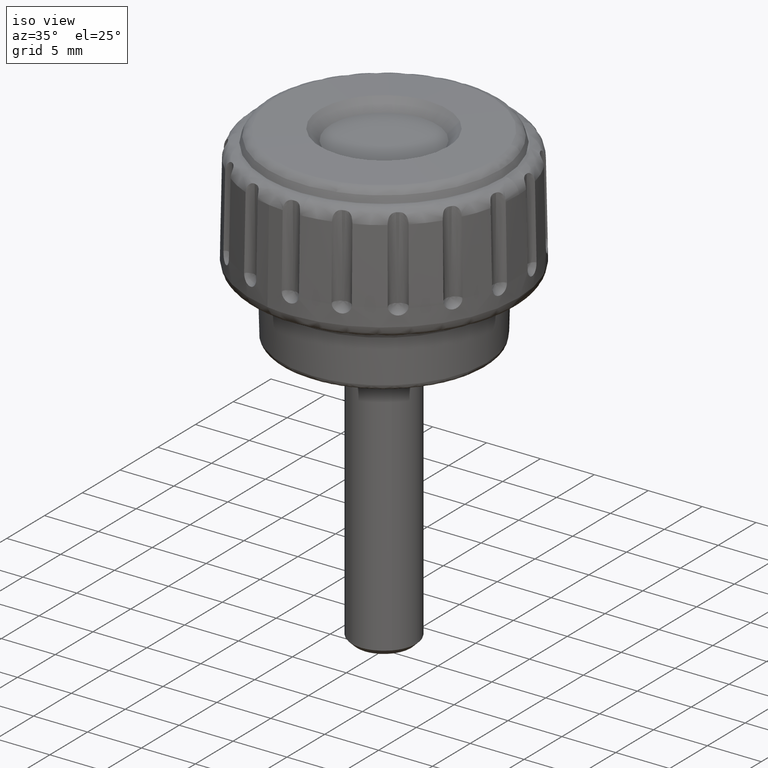
[diagram: clean part render]
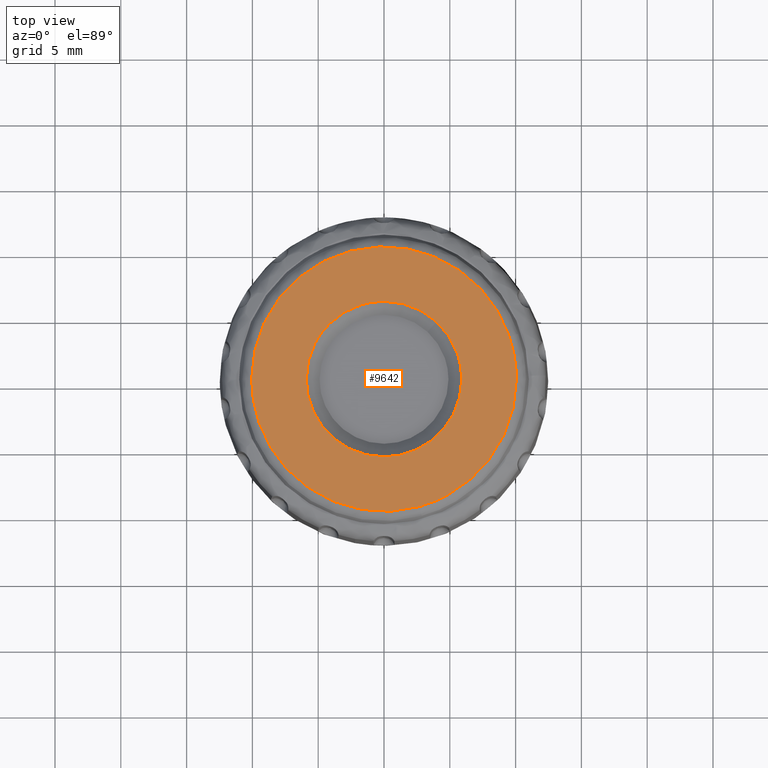
[diagram: tour spotlight — one face highlighted and labeled with its STEP entity id]
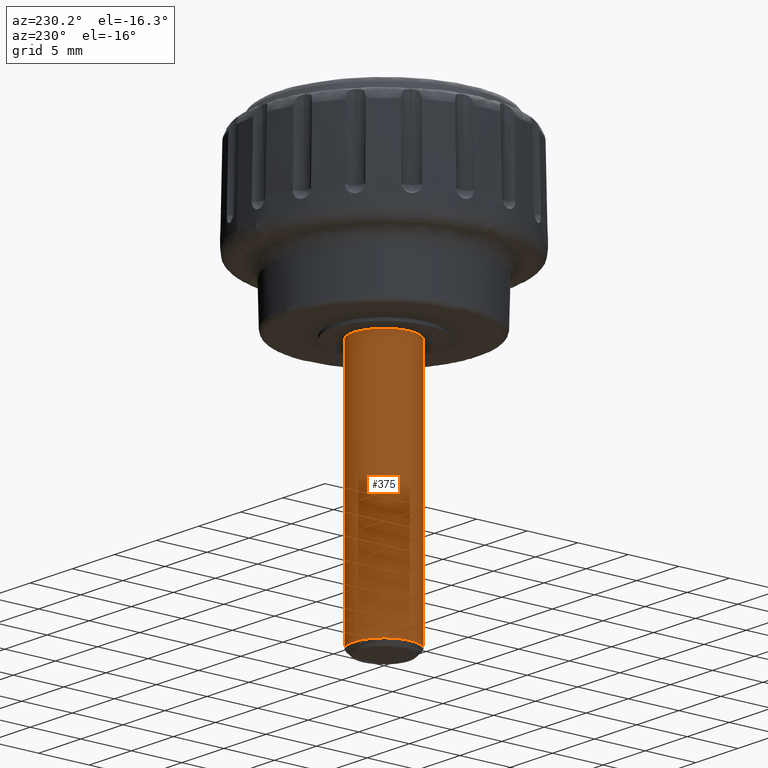
[diagram: tour spotlight — one face highlighted and labeled with its STEP entity id]
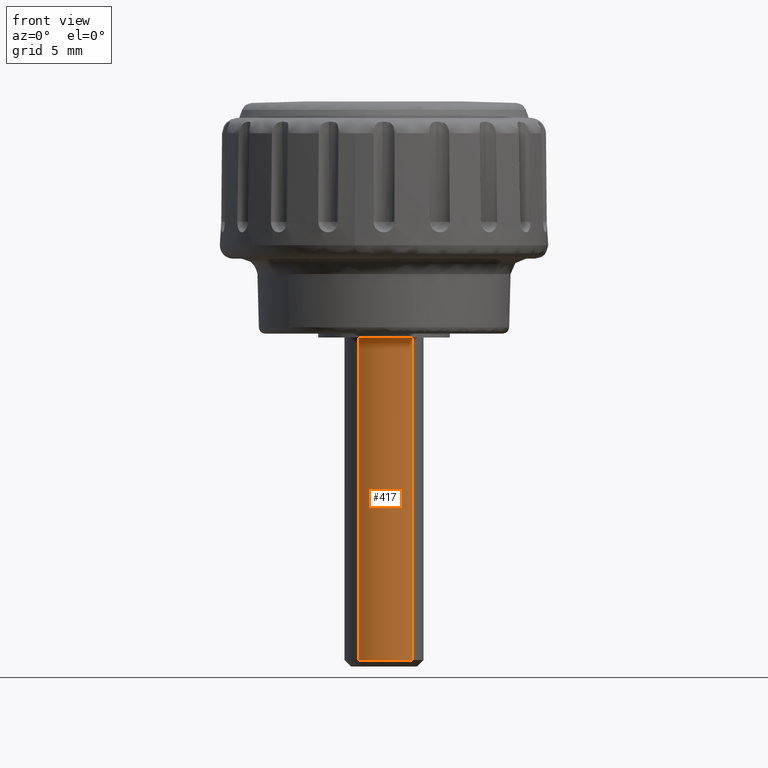
[diagram: tour spotlight — one face highlighted and labeled with its STEP entity id]
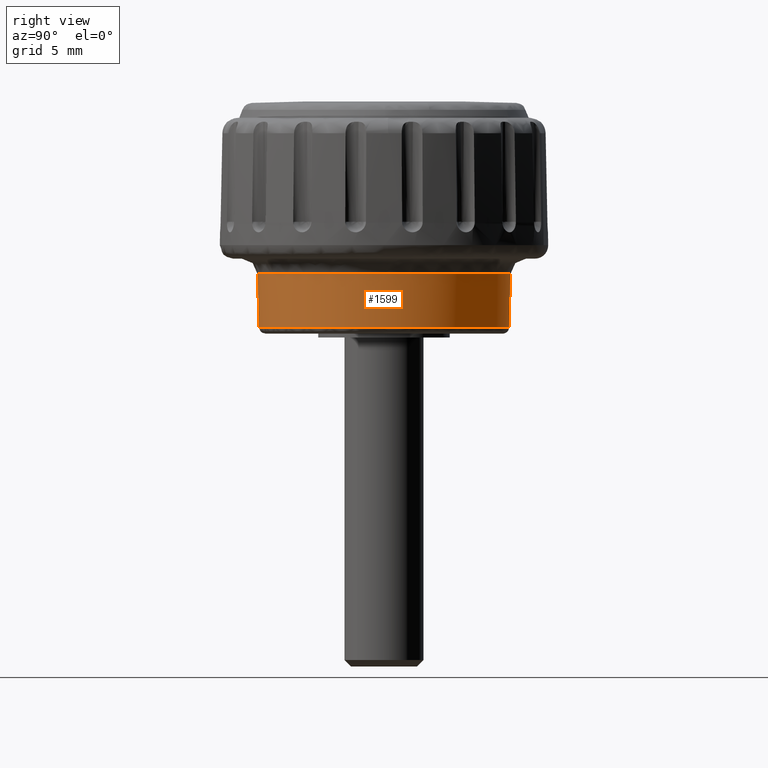
[diagram: tour spotlight — one face highlighted and labeled with its STEP entity id]
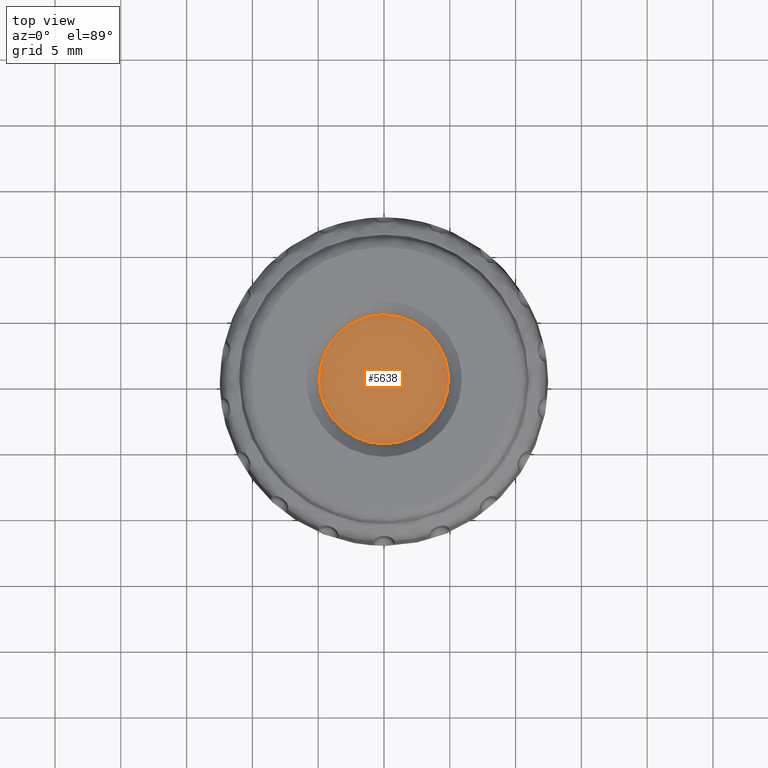
[diagram: tour spotlight — one face highlighted and labeled with its STEP entity id]
A machine part: a face-by-face anatomy tour. The part has 110 B-rep faces; the first image is the clean iso view, then the 5 largest visible faces are spotlighted one at a time (largest first), each with its STEP entity span.

Face 1 — top view, entity #9642. In plain terms, the highlighted face is a freeform B-spline surface patch.
Definition (entity closure, byte-faithful):
#1000=CARTESIAN_POINT('',(-4.121510479689125,4.235086036388356,17.941789608176322));
#1001=VERTEX_POINT('',#1000);
#1007=CARTESIAN_POINT('',(-5.909552000000001,0.0,17.941789677863099));
#1008=VERTEX_POINT('',#1007);
#1009=CARTESIAN_POINT('',(-5.909552000000001,0.0,17.941789677863099));
#1010=CARTESIAN_POINT('',(-5.909619661100727,0.418069894410495,17.941789670983930));
#1011=CARTESIAN_POINT('',(-5.834854874073522,1.118912363674545,17.941789659451761));
#1012=CARTESIAN_POINT('',(-5.575752436700976,2.006442468854826,17.941789644847940));
#1013=CARTESIAN_POINT('',(-5.225652433726414,2.807696856056351,17.941789631663511));
#1014=CARTESIAN_POINT('',(-4.758554685968084,3.549766622256800,17.941789619452759));
#1015=CARTESIAN_POINT('',(-4.324188961104616,4.037853153181898,17.941789611421981));
#1016=CARTESIAN_POINT('',(-4.121510479689125,4.235086036388356,17.941789608176322));
#1017=B_SPLINE_CURVE_WITH_KNOTS('',3,(#1009,#1010,#1011,#1012,#1013,#1014,#1015,#1016),.UNSPECIFIED.,.F.,.U.,(4,1,1,1,1,4),(6.848642E-009,1.254194519798363,2.102621309503282,2.766599025292651,3.873248115063476,4.721671390620792),.UNSPECIFIED.);
#1018=EDGE_CURVE('',#1008,#1001,#1017,.T.);
#1020=CARTESIAN_POINT('',(-0.000000557700096,-5.909551999999974,17.941789677863099));
#1021=VERTEX_POINT('',#1020);
#1022=CARTESIAN_POINT('',(-0.000000557700096,-5.909551999999974,17.941789677863099));
#1023=CARTESIAN_POINT('',(-0.265907684167898,-5.909559752145484,17.941789677863110));
#1024=CARTESIAN_POINT('',(-0.833989299106983,-5.871156951760404,17.941789677863099));
#1025=CARTESIAN_POINT('',(-1.580648674316703,-5.710686109015982,17.941789677863142));
#1026=CARTESIAN_POINT('',(-2.448511650021575,-5.406207007653451,17.941789677862989));
#1027=CARTESIAN_POINT('',(-3.272679022035996,-4.962419761250255,17.941789677863220));
#1028=CARTESIAN_POINT('',(-4.158151823653472,-4.244736003440629,17.941789677863010));
#1029=CARTESIAN_POINT('',(-4.877736876022654,-3.405422557712509,17.941789677863039));
#1030=CARTESIAN_POINT('',(-5.375092700300107,-2.514676325729137,17.941789677863330));
#1031=CARTESIAN_POINT('',(-5.667909356134548,-1.719335993361709,17.941789677863031));
#1032=CARTESIAN_POINT('',(-5.857771595572822,-0.930672772540710,17.941789677863191));
#1033=CARTESIAN_POINT('',(-5.909589585244265,-0.350518411395640,17.941789677862960));
#1034=CARTESIAN_POINT('',(-5.909552000000001,0.0,17.941789677863099));
#1035=B_SPLINE_CURVE_WITH_KNOTS('',3,(#1022,#1023,#1024,#1025,#1026,#1027,#1028,#1029,#1030,#1031,#1032,#1033,#1034),.UNSPECIFIED.,.F.,.U.,(4,1,1,1,1,1,1,1,1,1,4),(0.000000026020897,0.797723175459975,1.704244658628767,2.284418540561471,3.553544212825225,4.496329351117259,5.692906575939356,6.853255081185443,7.542209152648718,8.231168668898500,9.282716822140900),.UNSPECIFIED.);
#1036=EDGE_CURVE('',#1021,#1008,#1035,.T.);
#1038=CARTESIAN_POINT('',(5.909552000000001,0.0,17.941789677863099));
#1039=VERTEX_POINT('',#1038);
#1040=CARTESIAN_POINT('',(5.909552000000001,0.0,17.941789677863099));
#1041=CARTESIAN_POINT('',(5.909562046082797,-0.265907786939841,17.941789677863110));
#1042=CARTESIAN_POINT('',(5.874403299788630,-0.785634674789982,17.941789677863110));
#1043=CARTESIAN_POINT('',(5.687335207782830,-1.711677003988596,17.941789677863142));
#1044=CARTESIAN_POINT('',(5.330108821576777,-2.629277174452003,17.941789677863060));
#1045=CARTESIAN_POINT('',(4.761290759294286,-3.546058624764110,17.941789677863461));
#1046=CARTESIAN_POINT('',(4.200569361873785,-4.184111365999597,17.941789677862442));
#1047=CARTESIAN_POINT('',(3.559132077654618,-4.737406546959435,17.941789677863589));
#1048=CARTESIAN_POINT('',(2.932927801215936,-5.153051317825192,17.941789677862850));
#1049=CARTESIAN_POINT('',(2.102009020614549,-5.549194754543740,17.941789677863309));
#1050=CARTESIAN_POINT('',(1.136149087871587,-5.835729579446431,17.941789677862811));
#1051=CARTESIAN_POINT('',(0.386779638657437,-5.909592835188267,17.941789677863522));
#1052=CARTESIAN_POINT('',(-0.000000557700096,-5.909551999999974,17.941789677863099));
#1053=B_SPLINE_CURVE_WITH_KNOTS('',3,(#1040,#1041,#1042,#1043,#1044,#1045,#1046,#1047,#1048,#1049,#1050,#1051,#1052),.UNSPECIFIED.,.F.,.U.,(4,1,1,1,1,1,1,1,1,1,4),(0.000000025970371,0.797723229465197,1.559204216561980,2.828331541875478,3.734852290875899,4.786387951161980,5.366559449189907,6.273081200728529,7.034559601645047,8.122382846804698,9.282717450799874),.UNSPECIFIED.);
#1054=EDGE_CURVE('',#1039,#1021,#1053,.T.);
#1056=CARTESIAN_POINT('',(3.992435603349160,4.356978913906564,17.941789747310320));
#1057=VERTEX_POINT('',#1056);
#1058=CARTESIAN_POINT('',(3.992435603349160,4.356978913906564,17.941789747310320));
#1059=CARTESIAN_POINT('',(4.284076465759918,4.089815484677831,17.941789743051899));
#1060=CARTESIAN_POINT('',(4.787756635148734,3.525318875298195,17.941789734054300));
#1061=CARTESIAN_POINT('',(5.345356555342176,2.589990339368126,17.941789719145682));
#1062=CARTESIAN_POINT('',(5.690595191643523,1.680212609266842,17.941789704644581));
#1063=CARTESIAN_POINT('',(5.872179717603854,0.816531492780162,17.941789690878021));
#1064=CARTESIAN_POINT('',(5.909562673170454,0.267924568074131,17.941789682133638));
#1065=CARTESIAN_POINT('',(5.909552000000001,0.0,17.941789677863099));
#1066=B_SPLINE_CURVE_WITH_KNOTS('',3,(#1058,#1059,#1060,#1061,#1062,#1063,#1064,#1065),.UNSPECIFIED.,.F.,.U.,(4,1,1,1,1,4),(7.725902E-009,1.186527852656596,2.258231358571509,3.253380337973333,4.095438844937823,4.899212786028841),.UNSPECIFIED.);
#1067=EDGE_CURVE('',#1057,#1039,#1066,.T.);
#1164=CARTESIAN_POINT('',(0.000000557700089,5.909551999999975,17.941789677863099));
#1165=VERTEX_POINT('',#1164);
#1166=CARTESIAN_POINT('',(0.000000557700089,5.909551999999975,17.941789677863099));
#1167=CARTESIAN_POINT('',(0.308215791095894,5.909568956443000,17.941789683224400));
#1168=CARTESIAN_POINT('',(0.901807154747259,5.863002194994349,17.941789693549790));
#1169=CARTESIAN_POINT('',(1.893899974391516,5.631931751733363,17.941789710806969));
#1170=CARTESIAN_POINT('',(2.958036492032543,5.171228715063642,17.941789729317179));
#1171=CARTESIAN_POINT('',(3.664255304168359,4.657821650523145,17.941789741601859));
#1172=CARTESIAN_POINT('',(3.992435603349160,4.356978913906564,17.941789747310320));
#1173=B_SPLINE_CURVE_WITH_KNOTS('',3,(#1166,#1167,#1168,#1169,#1170,#1171,#1172),.UNSPECIFIED.,.F.,.U.,(4,1,1,1,4),(5.697659E-009,0.924644270796121,1.780803383496765,3.047903759170751,4.383504091195303),.UNSPECIFIED.);
#1174=EDGE_CURVE('',#1165,#1057,#1173,.T.);
#1176=CARTESIAN_POINT('',(-4.121510479689125,4.235086036388356,17.941789608176322));
#1177=CARTESIAN_POINT('',(-3.883187238377165,4.467054899102982,17.941789612205881));
#1178=CARTESIAN_POINT('',(-3.385655855818533,4.875458124680774,17.941789620618270));
#1179=CARTESIAN_POINT('',(-2.591623499921373,5.334946039071899,17.941789634043591));
#1180=CARTESIAN_POINT('',(-1.883088853828741,5.615348174320671,17.941789646023999));
#1181=CARTESIAN_POINT('',(-1.033332997146191,5.843505715980528,17.941789660391120));
#1182=CARTESIAN_POINT('',(-0.427606061203622,5.909632434107131,17.941789670633039));
#1183=CARTESIAN_POINT('',(0.000000557700089,5.909551999999975,17.941789677863099));
#1184=B_SPLINE_CURVE_WITH_KNOTS('',3,(#1176,#1177,#1178,#1179,#1180,#1181,#1182,#1183),.UNSPECIFIED.,.F.,.U.,(4,1,1,1,1,4),(6.528772E-009,0.997727951892553,1.924197304947695,2.743752036902596,3.278251024844706,4.561046152433264),.UNSPECIFIED.);
#1185=EDGE_CURVE('',#1001,#1165,#1184,.T.);
#3416=CARTESIAN_POINT('',(2.677068738669253,-9.691722231942137,17.831459028480641));
#3417=VERTEX_POINT('',#3416);
#3429=CARTESIAN_POINT('',(-10.054659382515901,0.0,17.831459031072551));
#3430=VERTEX_POINT('',#3429);
#3431=CARTESIAN_POINT('',(2.677068738669253,-9.691722231942137,17.831459028480641));
#3432=CARTESIAN_POINT('',(2.305498311058460,-9.794366216209097,17.831459028617591));
#3433=CARTESIAN_POINT('',(1.526936052111290,-9.961928204017665,17.831459028896852));
#3434=CARTESIAN_POINT('',(0.469485350518968,-10.060959278079610,17.831459029255960));
#3435=CARTESIAN_POINT('',(-0.591421044037809,-10.053251411631440,17.831459029599049));
#3436=CARTESIAN_POINT('',(-1.719517175895530,-9.935174298500778,17.831459029946402));
#3437=CARTESIAN_POINT('',(-3.058960575364642,-9.616327423952583,17.831459030330571));
#3438=CARTESIAN_POINT('',(-4.382252666741920,-9.086135040507752,17.831459030675770));
#3439=CARTESIAN_POINT('',(-5.533785141897118,-8.424864760096364,17.831459030944401));
#3440=CARTESIAN_POINT('',(-6.692250119378349,-7.556169141090214,17.831459031182352));
#3441=CARTESIAN_POINT('',(-7.675675940585733,-6.554827563479090,17.831459031342359));
#3442=CARTESIAN_POINT('',(-8.594004078892471,-5.283059124700836,17.831459031438289));
#3443=CARTESIAN_POINT('',(-9.214192794163617,-4.106898227959777,17.831459031452692));
#3444=CARTESIAN_POINT('',(-9.638623016878171,-2.925925767348024,17.831459031402581));
#3445=CARTESIAN_POINT('',(-9.960797246788141,-1.614213871139840,17.831459031298799));
#3446=CARTESIAN_POINT('',(-10.054737099017110,-0.650522936927708,17.831459031176060));
#3447=CARTESIAN_POINT('',(-10.054659382515901,0.0,17.831459031072551));
#3448=B_SPLINE_CURVE_WITH_KNOTS('',3,(#3431,#3432,#3433,#3434,#3435,#3436,#3437,#3438,#3439,#3440,#3441,#3442,#3443,#3444,#3445,#3446,#3447),.UNSPECIFIED.,.F.,.U.,(4,1,1,1,1,1,1,1,1,1,1,1,1,1,4),(0.000000015273024,1.156463902962702,2.385223978022680,3.180302966194091,4.336783782153448,5.782383848136906,7.300263725235464,8.601289909813117,9.757754287610448,11.637030510820690,12.793510252719180,14.455948778382909,15.612429709707730,16.552063605304159,18.503613867493101),.UNSPECIFIED.);
#3449=EDGE_CURVE('',#3417,#3430,#3448,.T.);
#3451=CARTESIAN_POINT('',(9.522750939903190,3.226978708582348,17.831459028153130));
#3452=VERTEX_POINT('',#3451);
#3453=CARTESIAN_POINT('',(-10.054659382515901,0.0,17.831459031072551));
#3454=CARTESIAN_POINT('',(-10.054671256548080,0.423793853488046,17.831459031133861));
#3455=CARTESIAN_POINT('',(-10.000997329337521,1.271387116860543,17.831459031247231));
#3456=CARTESIAN_POINT('',(-9.788659842080481,2.377424854629313,17.831459031370521));
#3457=CARTESIAN_POINT('',(-9.462517962414342,3.454064366891525,17.831459031469951));
#3458=CARTESIAN_POINT('',(-8.939477285445920,4.696250760093413,17.831459031559081));
#3459=CARTESIAN_POINT('',(-8.116114811452619,6.015342485914949,17.831459031607739));
#3460=CARTESIAN_POINT('',(-7.184277876788401,7.065503571624364,17.831459031598250));
#3461=CARTESIAN_POINT('',(-6.224375943902798,7.928689637704465,17.831459031557401));
#3462=CARTESIAN_POINT('',(-5.270832075530849,8.597184909061786,17.831459031489029));
#3463=CARTESIAN_POINT('',(-3.977536656023024,9.269630122393386,17.831459031362321));
#3464=CARTESIAN_POINT('',(-2.531558917011459,9.784519243448786,17.831459031187141));
#3465=CARTESIAN_POINT('',(-0.834547032347005,10.068985998604560,17.831459030933971));
#3466=CARTESIAN_POINT('',(0.939971378601139,10.061358664859450,17.831459030626810));
#3467=CARTESIAN_POINT('',(2.506547434002613,9.780322720950315,17.831459030314019));
#3468=CARTESIAN_POINT('',(3.849539427948847,9.313958262506571,17.831459030016820));
#3469=CARTESIAN_POINT('',(4.861992726649278,8.821896489732776,17.831459029767629));
#3470=CARTESIAN_POINT('',(5.864348424534205,8.197887082561547,17.831459029505972));
#3471=CARTESIAN_POINT('',(6.785294628920154,7.456498751139654,17.831459029238360));
#3472=CARTESIAN_POINT('',(7.578921522507645,6.632339706544056,17.831459028982160));
#3473=CARTESIAN_POINT('',(8.298318175651755,5.719837523872728,17.831459028725469));
#3474=CARTESIAN_POINT('',(8.973658465416508,4.616773408769180,17.831459028449618));
#3475=CARTESIAN_POINT('',(9.363108459240872,3.698168316342303,17.831459028248641));
#3476=CARTESIAN_POINT('',(9.522750939903190,3.226978708582348,17.831459028153130));
#3477=B_SPLINE_CURVE_WITH_KNOTS('',3,(#3453,#3454,#3455,#3456,#3457,#3458,#3459,#3460,#3461,#3462,#3463,#3464,#3465,#3466,#3467,#3468,#3469,#3470,#3471,#3472,#3473,#3474,#3475,#3476),.UNSPECIFIED.,.F.,.U.,(4,1,1,1,1,1,1,1,1,1,1,1,1,1,1,1,1,1,1,1,1,4),(0.000000050935505,1.271382338108623,2.542788655310680,3.371971324904120,4.643380481592935,6.578135125665643,8.015376953018610,8.844555759210298,10.447633108815960,11.497920761414299,13.211571265897129,15.035713677623329,16.638793500766639,18.518276999925089,19.789682186201400,20.895252860372519,21.890268144335170,23.327512665966861,24.433074810615651,25.317540054270619,26.810069007962760,28.302564754765609),.UNSPECIFIED.);
#3478=EDGE_CURVE('',#3430,#3452,#3477,.T.);
#3522=CARTESIAN_POINT('',(10.054659382515901,0.0,17.831459031072551));
#3523=VERTEX_POINT('',#3522);
#3524=CARTESIAN_POINT('',(9.522750939903190,3.226978708582348,17.831459028153130));
#3525=CARTESIAN_POINT('',(9.737012119458459,2.595014537109072,17.831459029328990));
#3526=CARTESIAN_POINT('',(9.984691255187697,1.522789322807777,17.831459030688631));
#3527=CARTESIAN_POINT('',(10.054668700901971,0.427749405026603,17.831459031072558));
#3528=CARTESIAN_POINT('',(10.054659382515901,0.0,17.831459031072551));
#3529=B_SPLINE_CURVE_WITH_KNOTS('',3,(#3524,#3525,#3526,#3527,#3528),.UNSPECIFIED.,.F.,.U.,(4,1,4),(8.874781E-010,2.001867338528899,3.285118561245126),.UNSPECIFIED.);
#3530=EDGE_CURVE('',#3452,#3523,#3529,.T.);
#3532=CARTESIAN_POINT('',(10.054659382515901,0.0,17.831459031072551));
#3533=CARTESIAN_POINT('',(10.054745058491060,-0.647396240099248,17.831459031072590));
#3534=CARTESIAN_POINT('',(9.958879122034052,-1.635481406308894,17.831459031038801));
#3535=CARTESIAN_POINT('',(9.645657844336473,-2.893531044931835,17.831459030929050));
#3536=CARTESIAN_POINT('',(9.298168592893033,-3.874099142356632,17.831459030806670));
#3537=CARTESIAN_POINT('',(8.879639493974404,-4.752201200943024,17.831459030659818));
#3538=CARTESIAN_POINT('',(8.314949201765581,-5.685973103863252,17.831459030461229));
#3539=CARTESIAN_POINT('',(7.696629808853966,-6.502537609803381,17.831459030244261));
#3540=CARTESIAN_POINT('',(6.909397355265623,-7.330918669980476,17.831459029966869));
#3541=CARTESIAN_POINT('',(6.154973028423711,-7.971677774693648,17.831459029703879));
#3542=CARTESIAN_POINT('',(5.229376154021996,-8.611733124814025,17.831459029376390));
#3543=CARTESIAN_POINT('',(4.117804646084551,-9.212802113847703,17.831459028987030));
#3544=CARTESIAN_POINT('',(3.186149765253029,-9.551140559789431,17.831459028659609));
#3545=CARTESIAN_POINT('',(2.677068738669253,-9.691722231942137,17.831459028480641));
#3546=B_SPLINE_CURVE_WITH_KNOTS('',3,(#3532,#3533,#3534,#3535,#3536,#3537,#3538,#3539,#3540,#3541,#3542,#3543,#3544,#3545),.UNSPECIFIED.,.F.,.U.,(4,1,1,1,1,1,1,1,1,1,1,4),(0.000000014412478,1.942167402411972,2.964362742004349,3.884337726068917,5.059862556937159,5.877619396891110,7.155347469123917,8.126442234492272,9.301965691360902,10.119722611338080,11.499684024199590,13.084084166756091),.UNSPECIFIED.);
#3547=EDGE_CURVE('',#3523,#3417,#3546,.T.);
#9604=CARTESIAN_POINT('',(-11.054717711246463,-11.051500963101445,17.592485791595173));
#9605=CARTESIAN_POINT('',(-5.529237104319104,-11.055256367411818,17.796232976084486));
#9606=CARTESIAN_POINT('',(5.529233305718487,-11.055256367411818,17.796232976084486));
#9607=CARTESIAN_POINT('',(11.054710121785643,-11.051500968259630,17.592486071449692));
#9608=CARTESIAN_POINT('',(-11.058472022051193,-5.527627090730541,17.796114378651410));
#9609=CARTESIAN_POINT('',(-5.531115535905244,-5.529506068698154,17.999999999999890));
#9610=CARTESIAN_POINT('',(5.531111736014140,-5.529506068698154,17.999999999999890));
#9611=CARTESIAN_POINT('',(11.058464430014668,-5.527627093311391,17.796114658696055));
#9612=CARTESIAN_POINT('',(-11.058472022051193,5.527607654936431,17.796114378651410));
#9613=CARTESIAN_POINT('',(-5.531115535905244,5.529486626297334,17.999999999999890));
#9614=CARTESIAN_POINT('',(5.531111736014140,5.529486626297334,17.999999999999890));
#9615=CARTESIAN_POINT('',(11.058464430014668,5.527607657517272,17.796114658696055));
#9616=CARTESIAN_POINT('',(-11.054717737638654,11.051462131094434,17.592487223071153));
#9617=CARTESIAN_POINT('',(-5.529237117524175,11.055217522218305,17.796234408533511));
#9618=CARTESIAN_POINT('',(5.529233318923549,11.055217522218305,17.796234408533511));
#9619=CARTESIAN_POINT('',(11.054710148177829,11.051462136252615,17.592487502925689));
#9627=(BOUNDED_SURFACE()B_SPLINE_SURFACE(2,2,((#9604,#9608,#9612,#9616),(#9605,#9609,#9613,#9617),(#9606,#9610,#9614,#9618),(#9607,#9611,#9615,#9619)),.UNSPECIFIED.,.F.,.F.,.U.)B_SPLINE_SURFACE_WITH_KNOTS((3,1,3),(3,1,3),(120.467627652740500,131.258495222790710,142.049355379486090),(120.470767624664300,131.258495222790710,142.046184889984090),.UNSPECIFIED.)GEOMETRIC_REPRESENTATION_ITEM()RATIONAL_B_SPLINE_SURFACE(((1.000679651960392,1.000339924878573,1.000339924878573,1.000679649571355),(1.000339727081820,1.0,1.0,1.000339724692782),(1.000339727081820,1.0,1.0,1.000339724692782),(1.000679651493334,1.000339924411514,1.000339924411514,1.000679649104296)))REPRESENTATION_ITEM('')SURFACE());
#9628=ORIENTED_EDGE('',*,*,#3449,.F.);
#9629=ORIENTED_EDGE('',*,*,#3547,.F.);
#9630=ORIENTED_EDGE('',*,*,#3530,.F.);
#9631=ORIENTED_EDGE('',*,*,#3478,.F.);
#9632=EDGE_LOOP('',(#9628,#9629,#9630,#9631));
#9633=FACE_OUTER_BOUND('',#9632,.T.);
#9634=ORIENTED_EDGE('',*,*,#1054,.T.);
#9635=ORIENTED_EDGE('',*,*,#1036,.T.);
#9636=ORIENTED_EDGE('',*,*,#1018,.T.);
#9637=ORIENTED_EDGE('',*,*,#1185,.T.);
#9638=ORIENTED_EDGE('',*,*,#1174,.T.);
#9639=ORIENTED_EDGE('',*,*,#1067,.T.);
#9640=EDGE_LOOP('',(#9634,#9635,#9636,#9637,#9638,#9639));
#9641=FACE_BOUND('',#9640,.T.);
#9642=ADVANCED_FACE('',(#9633,#9641),#9627,.T.);

Face 2 — auxiliary view, entity #375. In plain terms, the highlighted face is a freeform B-spline surface patch.
Definition (entity closure, byte-faithful):
#127=CARTESIAN_POINT('',(2.026770819649649,2.211832225202615,-24.503974903159421));
#128=VERTEX_POINT('',#127);
#134=CARTESIAN_POINT('',(3.0,0.0,-24.503975000000100));
#135=VERTEX_POINT('',#134);
#136=CARTESIAN_POINT('',(2.026770819649649,2.211832225202615,-24.503974903159421));
#137=CARTESIAN_POINT('',(2.227407418314030,2.028119581705434,-24.503974911202960));
#138=CARTESIAN_POINT('',(2.502893603867500,1.696112972537765,-24.503974925739119));
#139=CARTESIAN_POINT('',(2.772495377374212,1.177301470904814,-24.503974948454321));
#140=CARTESIAN_POINT('',(2.950290360391294,0.647653966138758,-24.503974971643959));
#141=CARTESIAN_POINT('',(3.000064783691306,0.246126034469111,-24.503974989223849));
#142=CARTESIAN_POINT('',(3.0,0.0,-24.503975000000100));
#143=B_SPLINE_CURVE_WITH_KNOTS('',3,(#136,#137,#138,#139,#140,#141,#142),.UNSPECIFIED.,.F.,.U.,(4,1,1,1,4),(9.360894E-009,0.816085858437468,1.282412527066087,1.748750232228472,2.487111692275007),.UNSPECIFIED.);
#144=EDGE_CURVE('',#128,#135,#143,.T.);
#146=CARTESIAN_POINT('',(2.176122984644731,-2.065063580313002,-24.503975000000040));
#147=VERTEX_POINT('',#146);
#148=CARTESIAN_POINT('',(3.0,0.0,-24.503975000000100));
#149=CARTESIAN_POINT('',(3.000007985972672,-0.166078542144104,-24.503975000000089));
#150=CARTESIAN_POINT('',(2.969397678591029,-0.533826438069740,-24.503975000000100));
#151=CARTESIAN_POINT('',(2.812196709464023,-1.108889899854671,-24.503974999999990));
#152=CARTESIAN_POINT('',(2.536300743625286,-1.638219112842736,-24.503975000000260));
#153=CARTESIAN_POINT('',(2.290446582273737,-1.944597617903106,-24.503974999999741));
#154=CARTESIAN_POINT('',(2.176122984644731,-2.065063580313002,-24.503975000000040));
#155=B_SPLINE_CURVE_WITH_KNOTS('',3,(#148,#149,#150,#151,#152,#153,#154),.UNSPECIFIED.,.F.,.U.,(4,1,1,1,4),(8.762906E-009,0.498239596345524,1.103250644649670,1.779428348957429,2.277667936539392),.UNSPECIFIED.);
#156=EDGE_CURVE('',#135,#147,#155,.T.);
#171=CARTESIAN_POINT('',(-1.937226260169539,-2.290667057274354,-24.503975000000239));
#172=VERTEX_POINT('',#171);
#183=CARTESIAN_POINT('',(-3.0,0.0,-24.503975000000100));
#184=VERTEX_POINT('',#183);
#185=CARTESIAN_POINT('',(-1.937226260169539,-2.290667057274354,-24.503975000000239));
#186=CARTESIAN_POINT('',(-2.144600629781797,-2.115414481446841,-24.503975000000260));
#187=CARTESIAN_POINT('',(-2.465339312360030,-1.758966710202471,-24.503975000000199));
#188=CARTESIAN_POINT('',(-2.757280800304263,-1.218761294184884,-24.503975000000150));
#189=CARTESIAN_POINT('',(-2.948891583733372,-0.651563614266146,-24.503975000000189));
#190=CARTESIAN_POINT('',(-3.000081304477809,-0.257937485351899,-24.503975000000040));
#191=CARTESIAN_POINT('',(-3.0,0.0,-24.503975000000100));
#192=B_SPLINE_CURVE_WITH_KNOTS('',3,(#185,#186,#187,#188,#189,#190,#191),.UNSPECIFIED.,.F.,.U.,(4,1,1,1,4),(7.213669E-009,0.814508961031274,1.425382801863156,1.832641313658479,2.606424935455307),.UNSPECIFIED.);
#193=EDGE_CURVE('',#172,#184,#192,.T.);
#195=CARTESIAN_POINT('',(-2.092295773929673,2.149952707831795,-24.503975096286300));
#196=VERTEX_POINT('',#195);
#197=CARTESIAN_POINT('',(-3.0,0.0,-24.503975000000100));
#198=CARTESIAN_POINT('',(-3.000113426921784,0.287148450680662,-24.503975012860110));
#199=CARTESIAN_POINT('',(-2.925932492838102,0.798934748090503,-24.503975035780599));
#200=CARTESIAN_POINT('',(-2.613201626206907,1.539669859596800,-24.503975068954620));
#201=CARTESIAN_POINT('',(-2.298160228861617,1.949769764447714,-24.503975087321049));
#202=CARTESIAN_POINT('',(-2.092295773929673,2.149952707831795,-24.503975096286300));
#203=B_SPLINE_CURVE_WITH_KNOTS('',3,(#197,#198,#199,#200,#201,#202),.UNSPECIFIED.,.F.,.U.,(4,1,1,4),(9.478801E-009,0.861418349636076,1.535562466449815,2.396980806589948),.UNSPECIFIED.);
#204=EDGE_CURVE('',#184,#196,#203,.T.);
#240=CARTESIAN_POINT('',(0.000000777709638,2.999999999999899,-24.503975000000100));
#241=VERTEX_POINT('',#240);
#242=CARTESIAN_POINT('',(-2.092295773929673,2.149952707831795,-24.503975096286300));
#243=CARTESIAN_POINT('',(-1.936757878781510,2.301379243870434,-24.503975089128570));
#244=CARTESIAN_POINT('',(-1.678632583163065,2.502976128383764,-24.503975077249748));
#245=CARTESIAN_POINT('',(-1.244190743901435,2.740574446768846,-24.503975057257080));
#246=CARTESIAN_POINT('',(-0.723523188040153,2.937666145816056,-24.503975033296140));
#247=CARTESIAN_POINT('',(-0.277379334993325,3.000097635015333,-24.503975012764990));
#248=CARTESIAN_POINT('',(0.000000777709638,2.999999999999899,-24.503975000000100));
#249=B_SPLINE_CURVE_WITH_KNOTS('',3,(#242,#243,#244,#245,#246,#247,#248),.UNSPECIFIED.,.F.,.U.,(4,1,1,1,4),(9.513655E-009,0.651217318475358,0.976827350946632,1.483327048749384,2.315438317403614),.UNSPECIFIED.);
#250=EDGE_CURVE('',#196,#241,#249,.T.);
#252=CARTESIAN_POINT('',(0.000000777709638,2.999999999999899,-24.503975000000100));
#253=CARTESIAN_POINT('',(0.231806439857227,3.000046168040272,-24.503974988924242));
#254=CARTESIAN_POINT('',(0.695386005847606,2.946008867545097,-24.503974966774081));
#255=CARTESIAN_POINT('',(1.397480665040723,2.691588910472491,-24.503974933227308));
#256=CARTESIAN_POINT('',(1.821741292674490,2.399827938415038,-24.503974912955989));
#257=CARTESIAN_POINT('',(2.026770819649649,2.211832225202615,-24.503974903159421));
#258=B_SPLINE_CURVE_WITH_KNOTS('',3,(#252,#253,#254,#255,#256,#257),.UNSPECIFIED.,.F.,.U.,(4,1,1,4),(9.160802E-009,0.695408379784280,1.390816404075116,2.225306581128052),.UNSPECIFIED.);
#259=EDGE_CURVE('',#241,#128,#258,.T.);
#274=CARTESIAN_POINT('',(-1.937226115146076,-2.290666928821395,0.612599375000003));
#275=CARTESIAN_POINT('',(-2.002784018511870,-2.235224349694545,0.612599375000003));
#276=CARTESIAN_POINT('',(-2.065063727081261,-2.176123113036862,0.612599375000003));
#277=CARTESIAN_POINT('',(-4.241186840118123,-0.111059385955601,0.612599375000003));
#278=CARTESIAN_POINT('',(-2.176123113036862,2.065063727081261,0.612599375000003));
#279=CARTESIAN_POINT('',(-0.111059385955601,4.241186840118123,0.612599375000003));
#280=CARTESIAN_POINT('',(2.065063727081261,2.176123113036862,0.612599375000003));
#281=CARTESIAN_POINT('',(4.241186840118123,0.111059385955601,0.612599375000003));
#282=CARTESIAN_POINT('',(2.176123113036862,-2.065063727081261,0.612599375000003));
#283=CARTESIAN_POINT('',(-1.937226115146076,-2.290666928821395,-25.131889359375108));
#284=CARTESIAN_POINT('',(-2.002784018511870,-2.235224349694545,-25.131889359375108));
#285=CARTESIAN_POINT('',(-2.065063727081261,-2.176123113036862,-25.131889359375108));
#286=CARTESIAN_POINT('',(-4.241186840118123,-0.111059385955601,-25.131889359375112));
#287=CARTESIAN_POINT('',(-2.176123113036862,2.065063727081261,-25.131889359375108));
#288=CARTESIAN_POINT('',(-0.111059385955601,4.241186840118123,-25.131889359375112));
#289=CARTESIAN_POINT('',(2.065063727081261,2.176123113036862,-25.131889359375108));
#290=CARTESIAN_POINT('',(4.241186840118123,0.111059385955601,-25.131889359375112));
#291=CARTESIAN_POINT('',(2.176123113036862,-2.065063727081261,-25.131889359375108));
#299=(BOUNDED_SURFACE()B_SPLINE_SURFACE(2,1,((#274,#283),(#275,#284),(#276,#285),(#277,#286),(#278,#287),(#279,#288),(#280,#289),(#281,#290),(#282,#291)),.UNSPECIFIED.,.F.,.F.,.U.)B_SPLINE_SURFACE_WITH_KNOTS((3,2,2,2,3),(2,2),(0.0,0.198822509939086,5.169385258416225,10.139948006893370,15.110510755370500),(0.0,25.744488734375111),.UNSPECIFIED.)GEOMETRIC_REPRESENTATION_ITEM()RATIONAL_B_SPLINE_SURFACE(((0.977505800795127,0.977505800795127),(0.988284271247462,0.988284271247462),(1.0,1.0),(0.707106781186548,0.707106781186548),(1.0,1.0),(0.707106781186548,0.707106781186548),(1.0,1.0),(0.707106781186548,0.707106781186548),(1.0,1.0)))REPRESENTATION_ITEM('')SURFACE());
#300=ORIENTED_EDGE('',*,*,#193,.F.);
#301=CARTESIAN_POINT('',(-1.937226259899433,-2.290667057502783,-5.678856E-016));
#302=VERTEX_POINT('',#301);
#303=CARTESIAN_POINT('',(-1.937226259899433,-2.290667057502783,-5.678856E-016));
#304=CARTESIAN_POINT('',(-1.937226260169539,-2.290667057274354,-24.503975000000239));
#305=QUASI_UNIFORM_CURVE('',1,(#303,#304),.UNSPECIFIED.,.F.,.U.);
#306=EDGE_CURVE('',#302,#172,#305,.T.);
#307=ORIENTED_EDGE('',*,*,#306,.F.);
#308=CARTESIAN_POINT('',(-3.0,0.0,0.0));
#309=VERTEX_POINT('',#308);
#310=CARTESIAN_POINT('',(-1.937226259899433,-2.290667057502783,-5.678856E-016));
#311=CARTESIAN_POINT('',(-2.144602333709354,-2.115413153010062,-5.244380E-016));
#312=CARTESIAN_POINT('',(-2.483670955530686,-1.738606853940788,-4.310229E-016));
#313=CARTESIAN_POINT('',(-2.806712335389814,-1.121040103339549,-2.779202E-016));
#314=CARTESIAN_POINT('',(-2.967564424260345,-0.542997528093127,-1.346160E-016));
#315=CARTESIAN_POINT('',(-3.000015892620458,-0.176475801076593,-4.375061E-017));
#316=CARTESIAN_POINT('',(-3.0,0.0,0.0));
#317=B_SPLINE_CURVE_WITH_KNOTS('',3,(#310,#311,#312,#313,#314,#315,#316),.UNSPECIFIED.,.F.,.U.,(4,1,1,1,4),(7.213575E-009,0.814508961141758,1.506833186151261,2.076996106875086,2.606424935809063),.UNSPECIFIED.);
#318=EDGE_CURVE('',#302,#309,#317,.T.);
#319=ORIENTED_EDGE('',*,*,#318,.T.);
#320=CARTESIAN_POINT('',(0.000000777709638,2.999999999999899,0.0));
#321=VERTEX_POINT('',#320);
#322=CARTESIAN_POINT('',(-3.0,0.0,0.0));
#323=CARTESIAN_POINT('',(-3.000120665212395,0.294537760682688,0.0));
#324=CARTESIAN_POINT('',(-2.928934521253937,0.773061554876941,0.0));
#325=CARTESIAN_POINT('',(-2.654789143150876,1.446538795432055,0.0));
#326=CARTESIAN_POINT('',(-2.298060610383747,1.966506232957144,0.0));
#327=CARTESIAN_POINT('',(-1.810180442128130,2.419698024682489,0.0));
#328=CARTESIAN_POINT('',(-1.238316492029571,2.762501533462753,0.0));
#329=CARTESIAN_POINT('',(-0.613596807243851,2.960392662602242,0.0));
#330=CARTESIAN_POINT('',(-0.184072672682313,3.000008365036301,0.0));
#331=CARTESIAN_POINT('',(0.000000777709638,2.999999999999899,0.0));
#332=B_SPLINE_CURVE_WITH_KNOTS('',3,(#322,#323,#324,#325,#326,#327,#328,#329,#330,#331),.UNSPECIFIED.,.F.,.U.,(4,1,1,1,1,1,1,4),(0.000000030474222,0.883576544760941,1.435818733348275,2.172139515756435,2.761180338747046,3.423865306599400,4.160190205312819,4.712418986958948),.UNSPECIFIED.);
#333=EDGE_CURVE('',#309,#321,#332,.T.);
#334=ORIENTED_EDGE('',*,*,#333,.T.);
#335=CARTESIAN_POINT('',(3.0,0.0,0.0));
#336=VERTEX_POINT('',#335);
#337=CARTESIAN_POINT('',(0.000000777709638,2.999999999999899,0.0));
#338=CARTESIAN_POINT('',(0.294542803114741,3.000123541724349,0.0));
#339=CARTESIAN_POINT('',(0.723973824965017,2.936226743537058,0.0));
#340=CARTESIAN_POINT('',(1.322111433701151,2.709672182490019,0.0));
#341=CARTESIAN_POINT('',(1.800117762789373,2.427178287152266,0.0));
#342=CARTESIAN_POINT('',(2.236490543338321,2.026742662329345,0.0));
#343=CARTESIAN_POINT('',(2.551981071734862,1.601318037134943,0.0));
#344=CARTESIAN_POINT('',(2.778665343827605,1.164412789243310,0.0));
#345=CARTESIAN_POINT('',(2.952538279469105,0.638114092066159,0.0));
#346=CARTESIAN_POINT('',(3.000053768683065,0.233167419478364,0.0));
#347=CARTESIAN_POINT('',(3.0,0.0,0.0));
#348=B_SPLINE_CURVE_WITH_KNOTS('',3,(#337,#338,#339,#340,#341,#342,#343,#344,#345,#346,#347),.UNSPECIFIED.,.F.,.U.,(4,1,1,1,1,1,1,1,4),(0.000000030744557,0.883576380554867,1.288552567541117,1.914421043404030,2.540281028820359,3.055701658035203,3.497497562422357,4.012925529601644,4.712418110293450),.UNSPECIFIED.);
#349=EDGE_CURVE('',#321,#336,#348,.T.);
#350=ORIENTED_EDGE('',*,*,#349,.T.);
#351=CARTESIAN_POINT('',(2.176122984500831,-2.065063580464640,-6.106227E-016));
#352=VERTEX_POINT('',#351);
#353=CARTESIAN_POINT('',(3.0,0.0,0.0));
#354=CARTESIAN_POINT('',(3.000095069219756,-0.272857115257822,-8.068165E-017));
#355=CARTESIAN_POINT('',(2.942949763930163,-0.687993191503914,-2.034340E-016));
#356=CARTESIAN_POINT('',(2.742369135656551,-1.247796787229625,-3.689635E-016));
#357=CARTESIAN_POINT('',(2.506483523073449,-1.675341218562447,-4.953849E-016));
#358=CARTESIAN_POINT('',(2.290451300800273,-1.944600450269328,-5.750027E-016));
#359=CARTESIAN_POINT('',(2.176122984500831,-2.065063580464640,-6.106227E-016));
#360=B_SPLINE_CURVE_WITH_KNOTS('',3,(#353,#354,#355,#356,#357,#358,#359),.UNSPECIFIED.,.F.,.U.,(4,1,1,1,4),(8.762701E-009,0.818537510967593,1.245593630107192,1.779428349120733,2.277667936748443),.UNSPECIFIED.);
#361=EDGE_CURVE('',#336,#352,#360,.T.);
#362=ORIENTED_EDGE('',*,*,#361,.T.);
#363=CARTESIAN_POINT('',(2.176122984500831,-2.065063580464640,-6.106227E-016));
#364=CARTESIAN_POINT('',(2.176122984644731,-2.065063580313002,-24.503975000000040));
#365=QUASI_UNIFORM_CURVE('',1,(#363,#364),.UNSPECIFIED.,.F.,.U.);
#366=EDGE_CURVE('',#352,#147,#365,.T.);
#367=ORIENTED_EDGE('',*,*,#366,.T.);
#368=ORIENTED_EDGE('',*,*,#156,.F.);
#369=ORIENTED_EDGE('',*,*,#144,.F.);
#370=ORIENTED_EDGE('',*,*,#259,.F.);
#371=ORIENTED_EDGE('',*,*,#250,.F.);
#372=ORIENTED_EDGE('',*,*,#204,.F.);
#373=EDGE_LOOP('',(#300,#307,#319,#334,#350,#362,#367,#368,#369,#370,#371,#372));
#374=FACE_OUTER_BOUND('',#373,.T.);
#375=ADVANCED_FACE('',(#374),#299,.T.);

Face 3 — front view, entity #417. In plain terms, the highlighted face is a freeform B-spline surface patch.
Definition (entity closure, byte-faithful):
#146=CARTESIAN_POINT('',(2.176122984644731,-2.065063580313002,-24.503975000000040));
#147=VERTEX_POINT('',#146);
#158=CARTESIAN_POINT('',(-0.000000777709643,-2.999999999999899,-24.503975000000100));
#159=VERTEX_POINT('',#158);
#160=CARTESIAN_POINT('',(2.176122984644731,-2.065063580313002,-24.503975000000040));
#161=CARTESIAN_POINT('',(2.053929716926881,-2.193853756801876,-24.503975000000089));
#162=CARTESIAN_POINT('',(1.815221787008758,-2.404367971701255,-24.503975000000001));
#163=CARTESIAN_POINT('',(1.396326287623316,-2.669518389751493,-24.503975000000111));
#164=CARTESIAN_POINT('',(0.940145620681202,-2.865526285867961,-24.503975000000079));
#165=CARTESIAN_POINT('',(0.456511038437341,-2.977859468553457,-24.503975000000050));
#166=CARTESIAN_POINT('',(0.139488538062396,-3.000003311786394,-24.503975000000139));
#167=CARTESIAN_POINT('',(-0.000000777709643,-2.999999999999899,-24.503975000000100));
#168=B_SPLINE_CURVE_WITH_KNOTS('',3,(#160,#161,#162,#163,#164,#165,#166,#167),.UNSPECIFIED.,.F.,.U.,(4,1,1,1,1,4),(8.434381E-009,0.532601059001638,0.951075863243728,1.483675175965609,2.016280632471680,2.434751335829706),.UNSPECIFIED.);
#169=EDGE_CURVE('',#147,#159,#168,.T.);
#171=CARTESIAN_POINT('',(-1.937226260169539,-2.290667057274354,-24.503975000000239));
#172=VERTEX_POINT('',#171);
#173=CARTESIAN_POINT('',(-0.000000777709643,-2.999999999999899,-24.503975000000100));
#174=CARTESIAN_POINT('',(-0.153562075821036,-3.000007417620086,-24.503975000000182));
#175=CARTESIAN_POINT('',(-0.493592494701195,-2.973843750292653,-24.503975000000018));
#176=CARTESIAN_POINT('',(-0.952944316552689,-2.858131309053880,-24.503975000000310));
#177=CARTESIAN_POINT('',(-1.457921473475912,-2.641125726840521,-24.503974999999969));
#178=CARTESIAN_POINT('',(-1.761374972620123,-2.439451913683535,-24.503975000000469));
#179=CARTESIAN_POINT('',(-1.937226260169539,-2.290667057274354,-24.503975000000239));
#180=B_SPLINE_CURVE_WITH_KNOTS('',3,(#173,#174,#175,#176,#177,#178,#179),.UNSPECIFIED.,.F.,.U.,(4,1,1,1,4),(8.075021E-009,0.460685997705969,1.020096653612181,1.414963895579628,2.105993986174274),.UNSPECIFIED.);
#181=EDGE_CURVE('',#159,#172,#180,.T.);
#301=CARTESIAN_POINT('',(-1.937226259899433,-2.290667057502783,-5.678856E-016));
#302=VERTEX_POINT('',#301);
#303=CARTESIAN_POINT('',(-1.937226259899433,-2.290667057502783,-5.678856E-016));
#304=CARTESIAN_POINT('',(-1.937226260169539,-2.290667057274354,-24.503975000000239));
#305=QUASI_UNIFORM_CURVE('',1,(#303,#304),.UNSPECIFIED.,.F.,.U.);
#306=EDGE_CURVE('',#302,#172,#305,.T.);
#351=CARTESIAN_POINT('',(2.176122984500831,-2.065063580464640,-6.106227E-016));
#352=VERTEX_POINT('',#351);
#363=CARTESIAN_POINT('',(2.176122984500831,-2.065063580464640,-6.106227E-016));
#364=CARTESIAN_POINT('',(2.176122984644731,-2.065063580313002,-24.503975000000040));
#365=QUASI_UNIFORM_CURVE('',1,(#363,#364),.UNSPECIFIED.,.F.,.U.);
#366=EDGE_CURVE('',#352,#147,#365,.T.);
#376=CARTESIAN_POINT('',(2.176123113036862,-2.065063727081261,0.612599375000003));
#377=CARTESIAN_POINT('',(0.225973078753355,-4.120093074525207,0.612599375000003));
#378=CARTESIAN_POINT('',(-1.937226115146076,-2.290666928821395,0.612599375000003));
#379=CARTESIAN_POINT('',(2.176123113036862,-2.065063727081261,-25.131889359375108));
#380=CARTESIAN_POINT('',(0.225973078753355,-4.120093074525207,-25.131889359375112));
#381=CARTESIAN_POINT('',(-1.937226115146076,-2.290666928821395,-25.131889359375108));
#389=(BOUNDED_SURFACE()B_SPLINE_SURFACE(2,1,((#376,#379),(#377,#380),(#378,#381)),.UNSPECIFIED.,.F.,.F.,.U.)B_SPLINE_SURFACE_WITH_KNOTS((3,3),(2,2),(0.0,4.770430676126371),(0.0,25.744488734375111),.UNSPECIFIED.)GEOMETRIC_REPRESENTATION_ITEM()RATIONAL_B_SPLINE_SURFACE(((1.0,1.0),(0.718822509939086,0.718822509939086),(0.977505800795127,0.977505800795127)))REPRESENTATION_ITEM('')SURFACE());
#390=ORIENTED_EDGE('',*,*,#181,.F.);
#391=ORIENTED_EDGE('',*,*,#169,.F.);
#392=ORIENTED_EDGE('',*,*,#366,.F.);
#393=CARTESIAN_POINT('',(-0.000000777709643,-2.999999999999899,0.0));
#394=VERTEX_POINT('',#393);
#395=CARTESIAN_POINT('',(2.176122984500831,-2.065063580464640,-6.106227E-016));
#396=CARTESIAN_POINT('',(2.036478787649534,-2.212258225877227,-5.714384E-016));
#397=CARTESIAN_POINT('',(1.756154902761665,-2.453202043263489,-4.927792E-016));
#398=CARTESIAN_POINT('',(1.239056684952852,-2.753631254384784,-3.476809E-016));
#399=CARTESIAN_POINT('',(0.659398338697844,-2.951972799478949,-1.850281E-016));
#400=CARTESIAN_POINT('',(0.215576231291774,-3.000028919415628,-6.049115E-017));
#401=CARTESIAN_POINT('',(-0.000000777709643,-2.999999999999899,0.0));
#402=B_SPLINE_CURVE_WITH_KNOTS('',3,(#395,#396,#397,#398,#399,#400,#401),.UNSPECIFIED.,.F.,.U.,(4,1,1,1,4),(8.434419E-009,0.608687895194891,1.103253577204047,1.788019965408788,2.434751335620656),.UNSPECIFIED.);
#403=EDGE_CURVE('',#352,#394,#402,.T.);
#404=ORIENTED_EDGE('',*,*,#403,.T.);
#405=CARTESIAN_POINT('',(-0.000000777709643,-2.999999999999899,0.0));
#406=CARTESIAN_POINT('',(-0.296179258282622,-3.000136605379665,-8.682288E-017));
#407=CARTESIAN_POINT('',(-0.723858360820247,-2.936109999766607,-2.121943E-016));
#408=CARTESIAN_POINT('',(-1.381814263585779,-2.686987459476540,-4.050700E-016));
#409=CARTESIAN_POINT('',(-1.727894887793811,-2.467815389323591,-5.065214E-016));
#410=CARTESIAN_POINT('',(-1.937226259899433,-2.290667057502783,-5.678856E-016));
#411=B_SPLINE_CURVE_WITH_KNOTS('',3,(#405,#406,#407,#408,#409,#410),.UNSPECIFIED.,.F.,.U.,(4,1,1,4),(8.075195E-009,0.888471304971908,1.283339407104459,2.105993985820519),.UNSPECIFIED.);
#412=EDGE_CURVE('',#394,#302,#411,.T.);
#413=ORIENTED_EDGE('',*,*,#412,.T.);
#414=ORIENTED_EDGE('',*,*,#306,.T.);
#415=EDGE_LOOP('',(#390,#391,#392,#404,#413,#414));
#416=FACE_OUTER_BOUND('',#415,.T.);
#417=ADVANCED_FACE('',(#416),#389,.T.);

Face 4 — right view, entity #1599. In plain terms, the highlighted face is a freeform B-spline surface patch.
Definition (entity closure, byte-faithful):
#1434=CARTESIAN_POINT('',(-7.191511448117794,-6.222806541698294,0.684041851819643));
#1435=CARTESIAN_POINT('',(-6.831050219874228,-6.639380804797390,0.684041851819643));
#1436=CARTESIAN_POINT('',(-6.424900460282897,-7.011548490830609,0.684041851819643));
#1437=CARTESIAN_POINT('',(0.586648030547711,-13.436448951113505,0.684041851819643));
#1438=CARTESIAN_POINT('',(7.011548490830609,-6.424900460282897,0.684041851819643));
#1439=CARTESIAN_POINT('',(13.436448951113505,0.586648030547711,0.684041851819643));
#1440=CARTESIAN_POINT('',(6.424900460282897,7.011548490830609,0.684041851819643));
#1441=CARTESIAN_POINT('',(-0.586648030547711,13.436448951113505,0.684041851819643));
#1442=CARTESIAN_POINT('',(-7.011548490830609,6.424900460282897,0.684041851819643));
#1443=CARTESIAN_POINT('',(-7.275691322631801,-6.295647289791964,4.935105535789722));
#1444=CARTESIAN_POINT('',(-6.911010733662800,-6.717097741915641,4.935105535789722));
#1445=CARTESIAN_POINT('',(-6.500106808546885,-7.093621818025475,4.935105535789722));
#1446=CARTESIAN_POINT('',(0.593515009478589,-13.593728626572361,4.935105535789721));
#1447=CARTESIAN_POINT('',(7.093621818025475,-6.500106808546885,4.935105535789722));
#1448=CARTESIAN_POINT('',(13.593728626572361,0.593515009478589,4.935105535789721));
#1449=CARTESIAN_POINT('',(6.500106808546885,7.093621818025475,4.935105535789722));
#1450=CARTESIAN_POINT('',(-0.593515009478589,13.593728626572361,4.935105535789721));
#1451=CARTESIAN_POINT('',(-7.093621818025475,6.500106808546885,4.935105535789722));
#1459=(BOUNDED_SURFACE()B_SPLINE_SURFACE(2,1,((#1434,#1443),(#1435,#1444),(#1436,#1445),(#1437,#1446),(#1438,#1447),(#1439,#1448),(#1440,#1449),(#1441,#1450),(#1442,#1451)),.UNSPECIFIED.,.F.,.F.,.U.)B_SPLINE_SURFACE_WITH_KNOTS((3,2,2,2,3),(2,2),(0.0,1.275297299042216,17.216513537069918,33.157729775097607,49.098946013125321),(0.0,4.252520954801435),.UNSPECIFIED.)GEOMETRIC_REPRESENTATION_ITEM()RATIONAL_B_SPLINE_SURFACE(((0.956886118190660,0.956886118190660),(0.976568542494924,0.976568542494924),(1.0,1.0),(0.707106781186548,0.707106781186548),(1.0,1.0),(0.707106781186548,0.707106781186548),(1.0,1.0),(0.707106781186548,0.707106781186548),(1.0,1.0)))REPRESENTATION_ITEM('')SURFACE());
#1460=CARTESIAN_POINT('',(-0.059621697709883,-9.512486531979121,0.785197664741989));
#1461=VERTEX_POINT('',#1460);
#1462=CARTESIAN_POINT('',(-7.193366193778440,-6.224411982797124,0.785852231578903));
#1463=VERTEX_POINT('',#1462);
#1464=CARTESIAN_POINT('',(-0.059621697709883,-9.512486531979121,0.785197664741989));
#1465=CARTESIAN_POINT('',(-0.586782690422927,-9.509213304883776,0.785201211566977));
#1466=CARTESIAN_POINT('',(-1.408704392302252,-9.435470110951743,0.785219576863283));
#1467=CARTESIAN_POINT('',(-2.541976864148402,-9.183109129220398,0.785273076064374));
#1468=CARTESIAN_POINT('',(-3.624816975223445,-8.825702836492081,0.785345937426511));
#1469=CARTESIAN_POINT('',(-4.709570804365090,-8.299214019286691,0.785450426987642));
#1470=CARTESIAN_POINT('',(-5.992290403314635,-7.443764386329175,0.785617532587540));
#1471=CARTESIAN_POINT('',(-6.751918123187633,-6.734765983042580,0.785754340480085));
#1472=CARTESIAN_POINT('',(-7.193366193778440,-6.224411982797124,0.785852231578903));
#1473=B_SPLINE_CURVE_WITH_KNOTS('',3,(#1464,#1465,#1466,#1467,#1468,#1469,#1470,#1471,#1472),.UNSPECIFIED.,.F.,.U.,(4,1,1,1,1,1,4),(7.383877E-009,1.581507804796762,2.467154966444252,3.479321567999860,4.997563002113209,6.072994145495269,8.097325527159349),.UNSPECIFIED.);
#1474=EDGE_CURVE('',#1461,#1463,#1473,.T.);
#1475=ORIENTED_EDGE('',*,*,#1474,.F.);
#1476=CARTESIAN_POINT('',(9.512749480641890,0.0,0.786914354733086));
#1477=VERTEX_POINT('',#1476);
#1478=CARTESIAN_POINT('',(9.512749480641890,0.0,0.786914354733086));
#1479=CARTESIAN_POINT('',(9.512862423465773,-0.644636856345837,0.786793806525676));
#1480=CARTESIAN_POINT('',(9.419106546752603,-1.562706558380006,0.786622735677101));
#1481=CARTESIAN_POINT('',(9.061424260267149,-2.984861759043520,0.786359114139141));
#1482=CARTESIAN_POINT('',(8.615311180420306,-4.115670132221138,0.786150548786019));
#1483=CARTESIAN_POINT('',(7.900898630169518,-5.352951581779853,0.785923814895095));
#1484=CARTESIAN_POINT('',(7.178085674730808,-6.279991238469372,0.785755150944650));
#1485=CARTESIAN_POINT('',(6.362193283119682,-7.095749301857612,0.785607901055845));
#1486=CARTESIAN_POINT('',(5.419340786007145,-7.859219015998558,0.785471253434457));
#1487=CARTESIAN_POINT('',(4.222351956994409,-8.569962335872477,0.785346115713385));
#1488=CARTESIAN_POINT('',(2.764597826449267,-9.144871773999332,0.785248072082178));
#1489=CARTESIAN_POINT('',(1.347238093149671,-9.455099582232473,0.785199261803446));
#1490=CARTESIAN_POINT('',(0.370121569268389,-9.515204258144873,0.785194366327322));
#1491=CARTESIAN_POINT('',(-0.059621697709883,-9.512486531979121,0.785197664741989));
#1492=B_SPLINE_CURVE_WITH_KNOTS('',3,(#1478,#1479,#1480,#1481,#1482,#1483,#1484,#1485,#1486,#1487,#1488,#1489,#1490,#1491),.UNSPECIFIED.,.F.,.U.,(4,1,1,1,1,1,1,1,1,1,1,4),(0.000000020877970,1.933885454867694,2.754329374603225,4.395216591363145,5.567274461699382,7.032345663477246,7.911376779349300,9.024834942171779,10.665716781089801,12.072187039361911,13.713067480497450,15.002328359151740),.UNSPECIFIED.);
#1493=EDGE_CURVE('',#1477,#1461,#1492,.T.);
#1494=ORIENTED_EDGE('',*,*,#1493,.F.);
#1495=CARTESIAN_POINT('',(0.239056302376872,9.509745252401981,0.786914354403101));
#1496=VERTEX_POINT('',#1495);
#1497=CARTESIAN_POINT('',(0.239056302376872,9.509745252401981,0.786914354403101));
#1498=CARTESIAN_POINT('',(0.621839822453885,9.500131892572883,0.786914354416721));
#1499=CARTESIAN_POINT('',(1.386238549814417,9.434593064932548,0.786914354443921));
#1500=CARTESIAN_POINT('',(2.606527748346653,9.179287217802761,0.786914354487344));
#1501=CARTESIAN_POINT('',(3.800274319512074,8.754165851523210,0.786914354529816));
#1502=CARTESIAN_POINT('',(4.956761211373106,8.150631821376109,0.786914354570977));
#1503=CARTESIAN_POINT('',(5.899853698689154,7.490364515797574,0.786914354604526));
#1504=CARTESIAN_POINT('',(6.801013036126443,6.686284698337567,0.786914354636596));
#1505=CARTESIAN_POINT('',(7.508596479957061,5.877077119620461,0.786914354661768));
#1506=CARTESIAN_POINT('',(8.126072926434139,4.975938671676450,0.786914354683754));
#1507=CARTESIAN_POINT('',(8.641921527173484,4.034256574618444,0.786914354702074));
#1508=CARTESIAN_POINT('',(9.129877247421574,2.803222306998866,0.786914354719474));
#1509=CARTESIAN_POINT('',(9.444871946092885,1.416744306770128,0.786914354730661));
#1510=CARTESIAN_POINT('',(9.512758488895527,0.440335117081408,0.786914354733092));
#1511=CARTESIAN_POINT('',(9.512749480641890,0.0,0.786914354733086));
#1512=B_SPLINE_CURVE_WITH_KNOTS('',3,(#1497,#1498,#1499,#1500,#1501,#1502,#1503,#1504,#1505,#1506,#1507,#1508,#1509,#1510,#1511),.UNSPECIFIED.,.F.,.U.,(4,1,1,1,1,1,1,1,1,1,1,1,4),(0.000000020651139,1.148713500199063,2.297425179187444,3.733319314991432,4.939470601324523,6.203063542075258,7.179468198789868,8.557914317767290,9.419443101412302,10.453292282245320,11.774313878111879,13.382522634882580,14.703532804195261),.UNSPECIFIED.);
#1513=EDGE_CURVE('',#1496,#1477,#1512,.T.);
#1514=ORIENTED_EDGE('',*,*,#1513,.F.);
#1515=CARTESIAN_POINT('',(-7.013426644317725,6.426621079437400,0.786988860975398));
#1516=VERTEX_POINT('',#1515);
#1517=CARTESIAN_POINT('',(-7.013426644317725,6.426621079437400,0.786988860975398));
#1518=CARTESIAN_POINT('',(-6.641790824604760,6.832285802359550,0.786983194147879));
#1519=CARTESIAN_POINT('',(-5.827866888918496,7.578854834663845,0.786971842316052));
#1520=CARTESIAN_POINT('',(-4.485726978601456,8.436896017107740,0.786955908129344));
#1521=CARTESIAN_POINT('',(-3.179007330140665,8.997492495130112,0.786942445851412));
#1522=CARTESIAN_POINT('',(-1.625675981448681,9.424933799655243,0.786928226694112));
#1523=CARTESIAN_POINT('',(-0.501320995651864,9.528517618392998,0.786919470775719));
#1524=CARTESIAN_POINT('',(0.239056302376872,9.509745252401981,0.786914354403101));
#1525=B_SPLINE_CURVE_WITH_KNOTS('',3,(#1517,#1518,#1519,#1520,#1521,#1522,#1523,#1524),.UNSPECIFIED.,.F.,.U.,(4,1,1,1,1,4),(5.427269E-009,1.650477961806844,3.300961538550900,4.760988223303381,5.903631662436123,8.125429648457066),.UNSPECIFIED.);
#1526=EDGE_CURVE('',#1516,#1496,#1525,.T.);
#1527=ORIENTED_EDGE('',*,*,#1526,.F.);
#1528=CARTESIAN_POINT('',(-7.091620009715168,6.498272501299548,4.831420342680759));
#1529=VERTEX_POINT('',#1528);
#1530=CARTESIAN_POINT('',(-7.013426644317725,6.426621079437400,0.786988860975398));
#1531=CARTESIAN_POINT('',(-7.091620009715168,6.498272501299548,4.831420342680759));
#1532=QUASI_UNIFORM_CURVE('',1,(#1530,#1531),.UNSPECIFIED.,.F.,.U.);
#1533=EDGE_CURVE('',#1516,#1529,#1532,.T.);
#1534=ORIENTED_EDGE('',*,*,#1533,.T.);
#1535=CARTESIAN_POINT('',(0.670740437602922,9.595245044403225,4.831421001800820));
#1536=VERTEX_POINT('',#1535);
#1537=CARTESIAN_POINT('',(-7.091620009715168,6.498272501299548,4.831420342680759));
#1538=CARTESIAN_POINT('',(-6.680987745081335,6.946504162635875,4.831420374065615));
#1539=CARTESIAN_POINT('',(-6.009379649608190,7.552527849977641,4.831420426953327));
#1540=CARTESIAN_POINT('',(-4.963293490403535,8.258674370573665,4.831420512242313));
#1541=CARTESIAN_POINT('',(-4.148405082645444,8.695392338004789,4.831420580069690));
#1542=CARTESIAN_POINT('',(-3.087076096070487,9.136242590692373,4.831420669976408));
#1543=CARTESIAN_POINT('',(-1.911788622961495,9.462506234526749,4.831420771519762));
#1544=CARTESIAN_POINT('',(-0.568199033104954,9.628999181412265,4.831420890132684));
#1545=CARTESIAN_POINT('',(0.266472904391293,9.623517674405798,4.831420965152145));
#1546=CARTESIAN_POINT('',(0.670740437602922,9.595245044403225,4.831421001800820));
#1547=B_SPLINE_CURVE_WITH_KNOTS('',3,(#1537,#1538,#1539,#1540,#1541,#1542,#1543,#1544,#1545,#1546),.UNSPECIFIED.,.F.,.U.,(4,1,1,1,1,1,1,4),(6.508440E-009,1.823654389875572,2.701713213067833,3.782402450607918,4.592901202705972,6.146391434328972,7.429708317867416,8.645474095415006),.UNSPECIFIED.);
#1548=EDGE_CURVE('',#1529,#1536,#1547,.T.);
#1549=ORIENTED_EDGE('',*,*,#1548,.T.);
#1550=CARTESIAN_POINT('',(9.618660000000000,0.0,4.831421000000000));
#1551=VERTEX_POINT('',#1550);
#1552=CARTESIAN_POINT('',(0.670740437602922,9.595245044403225,4.831421001800820));
#1553=CARTESIAN_POINT('',(1.195832781517715,9.558567026642926,4.831421001695140));
#1554=CARTESIAN_POINT('',(2.314559567935696,9.387328753490609,4.831421001470002));
#1555=CARTESIAN_POINT('',(3.798314048728103,8.882798900467535,4.831421001171365));
#1556=CARTESIAN_POINT('',(5.212165672242755,8.130425312257113,4.831421000886861));
#1557=CARTESIAN_POINT('',(6.373893903384330,7.257525458229110,4.831421000652985));
#1558=CARTESIAN_POINT('',(7.499924709522086,6.091831663464374,4.831421000426405));
#1559=CARTESIAN_POINT('',(8.336286062977736,4.879579574177184,4.831421000258064));
#1560=CARTESIAN_POINT('',(8.896474782467518,3.706635740320720,4.831421000145352));
#1561=CARTESIAN_POINT('',(9.276183587338258,2.623403750558714,4.831421000068941));
#1562=CARTESIAN_POINT('',(9.546863612590476,1.428719722684224,4.831421000014427));
#1563=CARTESIAN_POINT('',(9.618685904782982,0.488775746477223,4.831421000000003));
#1564=CARTESIAN_POINT('',(9.618660000000000,0.0,4.831421000000000));
#1565=B_SPLINE_CURVE_WITH_KNOTS('',3,(#1552,#1553,#1554,#1555,#1556,#1557,#1558,#1559,#1560,#1561,#1562,#1563,#1564),.UNSPECIFIED.,.F.,.U.,(4,1,1,1,1,1,1,1,1,1,4),(0.000000019536587,1.579118421281182,3.383833766430497,4.680974553147181,6.372899378853584,7.726408974241863,9.531126619045640,10.771871013030260,11.617833385466939,12.971366006660091,14.437691242315671),.UNSPECIFIED.);
#1566=EDGE_CURVE('',#1536,#1551,#1565,.T.);
#1567=ORIENTED_EDGE('',*,*,#1566,.T.);
#1568=CARTESIAN_POINT('',(-7.273628923355996,-6.293862690934256,4.830693251513878));
#1569=VERTEX_POINT('',#1568);
#1570=CARTESIAN_POINT('',(9.618660000000000,0.0,4.831421000000000));
#1571=CARTESIAN_POINT('',(9.618588422309912,-1.273509180384081,4.828682903290315));
#1572=CARTESIAN_POINT('',(9.365847238907701,-2.533728721521983,4.828205937086558));
#1573=CARTESIAN_POINT('',(8.874841487175836,-3.708778943518807,4.829845425240325));
#1574=CARTESIAN_POINT('',(8.384258825708505,-4.882816647215154,4.831483500678507));
#1575=CARTESIAN_POINT('',(7.665194844218289,-5.948585455979404,4.828327566499377));
#1576=CARTESIAN_POINT('',(6.758534622583657,-6.843988829878041,4.830104914143819));
#1577=CARTESIAN_POINT('',(4.934381302589804,-8.645493956336660,4.833680845379168));
#1578=CARTESIAN_POINT('',(2.459715709987807,-9.650102793004090,4.823224042509286));
#1579=CARTESIAN_POINT('',(-0.120864688618739,-9.617882045640616,4.830827326438793));
#1580=CARTESIAN_POINT('',(-1.384140432432005,-9.601941305463365,4.828571229149536));
#1581=CARTESIAN_POINT('',(-2.631206956409560,-9.337550901510914,4.828275652947290));
#1582=CARTESIAN_POINT('',(-3.792263198341610,-8.839484524100996,4.829852692310831));
#1583=CARTESIAN_POINT('',(-4.952302624758250,-8.341854337120072,4.831428350554289));
#1584=CARTESIAN_POINT('',(-6.003752260157995,-7.620359095542486,4.828379855784535));
#1585=CARTESIAN_POINT('',(-6.886326211513537,-6.715382380762375,4.830121813450998));
#1586=CARTESIAN_POINT('',(-7.019918389378883,-6.578399173792336,4.830385487580577));
#1587=CARTESIAN_POINT('',(-7.149052300256770,-6.437816981738525,4.830571426235365));
#1588=CARTESIAN_POINT('',(-7.273628923355996,-6.293862690934256,4.830693251513878));
#1589=B_SPLINE_CURVE_WITH_KNOTS('',3,(#1570,#1571,#1572,#1573,#1574,#1575,#1576,#1577,#1578,#1579,#1580,#1581,#1582,#1583,#1584,#1585,#1586,#1587,#1588),.UNSPECIFIED.,.F.,.U.,(4,3,3,3,3,3,4),(0.0,3.820536709079851,7.637781334754942,15.317879447584660,19.077526380828310,22.833880736851231,23.402467152170122),.UNSPECIFIED.);
#1590=EDGE_CURVE('',#1551,#1569,#1589,.T.);
#1591=ORIENTED_EDGE('',*,*,#1590,.T.);
#1592=CARTESIAN_POINT('',(-7.193366193778440,-6.224411982797124,0.785852231578903));
#1593=CARTESIAN_POINT('',(-7.273628923355996,-6.293862690934256,4.830693251513878));
#1594=QUASI_UNIFORM_CURVE('',1,(#1592,#1593),.UNSPECIFIED.,.F.,.U.);
#1595=EDGE_CURVE('',#1463,#1569,#1594,.T.);
#1596=ORIENTED_EDGE('',*,*,#1595,.F.);
#1597=EDGE_LOOP('',(#1475,#1494,#1514,#1527,#1534,#1549,#1567,#1591,#1596));
#1598=FACE_OUTER_BOUND('',#1597,.T.);
#1599=ADVANCED_FACE('',(#1598),#1459,.T.);

Face 5 — top view, entity #5638. In plain terms, the highlighted face is a freeform B-spline surface patch.
Definition (entity closure, byte-faithful):
#985=CARTESIAN_POINT('',(-4.900000000000000,0.0,16.932237677863050));
#986=VERTEX_POINT('',#985);
#987=CARTESIAN_POINT('',(-3.417416602500675,3.511589599273225,16.932237601290641));
#988=VERTEX_POINT('',#987);
#989=CARTESIAN_POINT('',(-4.900000000000000,0.0,16.932237677863050));
#990=CARTESIAN_POINT('',(-4.900030201474166,0.295670062436607,16.932237671415770));
#991=CARTESIAN_POINT('',(-4.859266521026129,0.744256757550590,16.932237661634069));
#992=CARTESIAN_POINT('',(-4.709405689112777,1.390535441019678,16.932237647541559));
#993=CARTESIAN_POINT('',(-4.470821608169923,2.064792301792297,16.932237632838831));
#994=CARTESIAN_POINT('',(-4.048975276658434,2.815642368376197,16.932237616466551));
#995=CARTESIAN_POINT('',(-3.629320905848392,3.305396682681432,16.932237605786689));
#996=CARTESIAN_POINT('',(-3.417416602500675,3.511589599273225,16.932237601290641));
#997=B_SPLINE_CURVE_WITH_KNOTS('',3,(#989,#990,#991,#992,#993,#994,#995,#996),.UNSPECIFIED.,.F.,.U.,(4,1,1,1,1,4),(7.272101E-009,0.887003283320509,1.345801278203041,1.988102566474824,3.028046406390734,3.915049682439212),.UNSPECIFIED.);
#998=EDGE_CURVE('',#986,#988,#997,.T.);
#1069=CARTESIAN_POINT('',(3.310392171978023,3.612659119152747,16.932237754172260));
#1070=VERTEX_POINT('',#1069);
#1076=CARTESIAN_POINT('',(4.900000000000000,0.0,16.932237677863050));
#1077=VERTEX_POINT('',#1076);
#1078=CARTESIAN_POINT('',(3.310392171978023,3.612659119152747,16.932237754172260));
#1079=CARTESIAN_POINT('',(3.638106127362802,3.312600569322409,16.932237747834179));
#1080=CARTESIAN_POINT('',(4.047146837294145,2.819611109537620,16.932237737420980));
#1081=CARTESIAN_POINT('',(4.457657199884037,2.065795151757045,16.932237721498211));
#1082=CARTESIAN_POINT('',(4.681437129730171,1.492966186419824,16.932237709398699));
#1083=CARTESIAN_POINT('',(4.854770451168251,0.793399969764469,16.932237694621570));
#1084=CARTESIAN_POINT('',(4.900030024489091,0.296207959438877,16.932237684120029));
#1085=CARTESIAN_POINT('',(4.900000000000000,0.0,16.932237677863050));
#1086=B_SPLINE_CURVE_WITH_KNOTS('',3,(#1078,#1079,#1080,#1081,#1082,#1083,#1084,#1085),.UNSPECIFIED.,.F.,.U.,(4,1,1,1,1,4),(7.726567E-009,1.332930356168806,1.904189888525032,2.570645956054266,3.173642358540494,4.062261029119453),.UNSPECIFIED.);
#1087=EDGE_CURVE('',#1070,#1077,#1086,.T.);
#1089=CARTESIAN_POINT('',(-0.000000612805690,-4.899999999999961,16.932237677863050));
#1090=VERTEX_POINT('',#1089);
#1091=CARTESIAN_POINT('',(4.900000000000000,0.0,16.932237677863050));
#1092=CARTESIAN_POINT('',(4.900017660227622,-0.260570062667675,16.932237677863011));
#1093=CARTESIAN_POINT('',(4.862335519116816,-0.731599076944693,16.932237677863089));
#1094=CARTESIAN_POINT('',(4.697290947035140,-1.456210698114251,16.932237677863011));
#1095=CARTESIAN_POINT('',(4.401828501251481,-2.215316895002311,16.932237677863121));
#1096=CARTESIAN_POINT('',(3.982286708593366,-2.891544972932592,16.932237677863050));
#1097=CARTESIAN_POINT('',(3.508447766621950,-3.437379227850030,16.932237677863078));
#1098=CARTESIAN_POINT('',(3.017438928674437,-3.882438410084677,16.932237677862989));
#1099=CARTESIAN_POINT('',(2.483397605460633,-4.241646792952366,16.932237677863132));
#1100=CARTESIAN_POINT('',(1.898042967252627,-4.529546130235343,16.932237677863061));
#1101=CARTESIAN_POINT('',(1.112365501855972,-4.808004809613686,16.932237677863039));
#1102=CARTESIAN_POINT('',(0.451012156737575,-4.900183257835592,16.932237677863061));
#1103=CARTESIAN_POINT('',(-0.000000612805690,-4.899999999999961,16.932237677863050));
#1104=B_SPLINE_CURVE_WITH_KNOTS('',3,(#1091,#1092,#1093,#1094,#1095,#1096,#1097,#1098,#1099,#1100,#1101,#1102,#1103),.UNSPECIFIED.,.F.,.U.,(4,1,1,1,1,1,1,1,1,1,4),(0.000000026101139,0.781709305388448,1.413105270099732,2.224890833676576,3.217073137243029,3.788328933057628,4.389634526149170,5.201425955443161,5.712553619033370,6.343945690009960,7.696914420889293),.UNSPECIFIED.);
#1105=EDGE_CURVE('',#1077,#1090,#1104,.T.);
#1107=CARTESIAN_POINT('',(-0.000000612805690,-4.899999999999961,16.932237677863050));
#1108=CARTESIAN_POINT('',(-0.320705800594902,-4.900038430605723,16.932237677862989));
#1109=CARTESIAN_POINT('',(-0.791722543557093,-4.853588327360066,16.932237677863160));
#1110=CARTESIAN_POINT('',(-1.512443104701955,-4.675400676911170,16.932237677863011));
#1111=CARTESIAN_POINT('',(-2.065357344503044,-4.460170604399234,16.932237677863078));
#1112=CARTESIAN_POINT('',(-2.670977875682021,-4.124408322288233,16.932237677862862));
#1113=CARTESIAN_POINT('',(-3.188845403806390,-3.742786408797568,16.932237677863071));
#1114=CARTESIAN_POINT('',(-3.774869924979388,-3.163969151118903,16.932237677863149));
#1115=CARTESIAN_POINT('',(-4.287857437064093,-2.440333167219664,16.932237677862808));
#1116=CARTESIAN_POINT('',(-4.672732023890616,-1.564768953084427,16.932237677863242));
#1117=CARTESIAN_POINT('',(-4.863174005138204,-0.751650637770791,16.932237677862901));
#1118=CARTESIAN_POINT('',(-4.900006536317408,-0.230505430389470,16.932237677863089));
#1119=CARTESIAN_POINT('',(-4.900000000000000,0.0,16.932237677863050));
#1120=B_SPLINE_CURVE_WITH_KNOTS('',3,(#1107,#1108,#1109,#1110,#1111,#1112,#1113,#1114,#1115,#1116,#1117,#1118,#1119),.UNSPECIFIED.,.F.,.U.,(4,1,1,1,1,1,1,1,1,1,4),(0.000000026152398,0.962106411445636,1.413105143370588,2.224890634011155,2.736019316674768,3.487676452120402,4.149106700987029,5.201425488471714,6.133479527994423,7.005395132619671,7.696913730113374),.UNSPECIFIED.);
#1121=EDGE_CURVE('',#1090,#986,#1120,.T.);
#1140=CARTESIAN_POINT('',(0.000000612805628,4.899999999999960,16.932237677863050));
#1141=VERTEX_POINT('',#1140);
#1142=CARTESIAN_POINT('',(-3.417416602500675,3.511589599273225,16.932237601290641));
#1143=CARTESIAN_POINT('',(-3.177474848177799,3.745162213019601,16.932237606666899));
#1144=CARTESIAN_POINT('',(-2.696034527172534,4.125943814888619,16.932237617454270));
#1145=CARTESIAN_POINT('',(-1.943019229872679,4.520238025025720,16.932237634326800));
#1146=CARTESIAN_POINT('',(-1.063595438015761,4.817180908573883,16.932237654031521));
#1147=CARTESIAN_POINT('',(-0.413653760042798,4.900113629778102,16.932237668594482));
#1148=CARTESIAN_POINT('',(0.000000612805628,4.899999999999960,16.932237677863050));
#1149=B_SPLINE_CURVE_WITH_KNOTS('',3,(#1142,#1143,#1144,#1145,#1146,#1147,#1148),.UNSPECIFIED.,.F.,.U.,(4,1,1,1,4),(1.896446E-009,1.004562420327487,1.831849285739097,2.540951835138564,3.781882022659987),.UNSPECIFIED.);
#1150=EDGE_CURVE('',#988,#1141,#1149,.T.);
#1152=CARTESIAN_POINT('',(0.000000612805628,4.899999999999960,16.932237677863050));
#1153=CARTESIAN_POINT('',(0.265027373647749,4.900019199843487,16.932237683972321));
#1154=CARTESIAN_POINT('',(0.776145987385579,4.858432317228766,16.932237695754271));
#1155=CARTESIAN_POINT('',(1.421924233022793,4.702041287424380,16.932237710640418));
#1156=CARTESIAN_POINT('',(2.060600182951095,4.462171808802006,16.932237725362750));
#1157=CARTESIAN_POINT('',(2.680083919527352,4.129683303105104,16.932237739642861));
#1158=CARTESIAN_POINT('',(3.115006169529039,3.791721458633326,16.932237749668289));
#1159=CARTESIAN_POINT('',(3.310392171978023,3.612659119152747,16.932237754172260));
#1160=B_SPLINE_CURVE_WITH_KNOTS('',3,(#1152,#1153,#1154,#1155,#1156,#1157,#1158,#1159),.UNSPECIFIED.,.F.,.U.,(4,1,1,1,1,4),(2.460970E-009,0.795082592751601,1.533378318305403,1.987707032490046,2.839585391448221,3.634667981746189),.UNSPECIFIED.);
#1161=EDGE_CURVE('',#1141,#1070,#1160,.T.);
#5625=CARTESIAN_POINT('',(-5.389510073001086,-5.389510073001045,16.932237677863050));
#5626=CARTESIAN_POINT('',(5.389510248238743,-5.389510073001045,16.932237677863050));
#5627=CARTESIAN_POINT('',(-5.389510073001086,5.389510248238699,16.932237677863050));
#5628=CARTESIAN_POINT('',(5.389510248238743,5.389510248238699,16.932237677863050));
#5629=B_SPLINE_SURFACE_WITH_KNOTS('',1,1,((#5625,#5627),(#5626,#5628)),.UNSPECIFIED.,.F.,.F.,.U.,(2,2),(2,2),(0.0,10.779020321239830),(0.0,10.779020321239750),.UNSPECIFIED.);
#5630=ORIENTED_EDGE('',*,*,#1121,.F.);
#5631=ORIENTED_EDGE('',*,*,#1105,.F.);
#5632=ORIENTED_EDGE('',*,*,#1087,.F.);
#5633=ORIENTED_EDGE('',*,*,#1161,.F.);
#5634=ORIENTED_EDGE('',*,*,#1150,.F.);
#5635=ORIENTED_EDGE('',*,*,#998,.F.);
#5636=EDGE_LOOP('',(#5630,#5631,#5632,#5633,#5634,#5635));
#5637=FACE_OUTER_BOUND('',#5636,.T.);
#5638=ADVANCED_FACE('',(#5637),#5629,.T.);